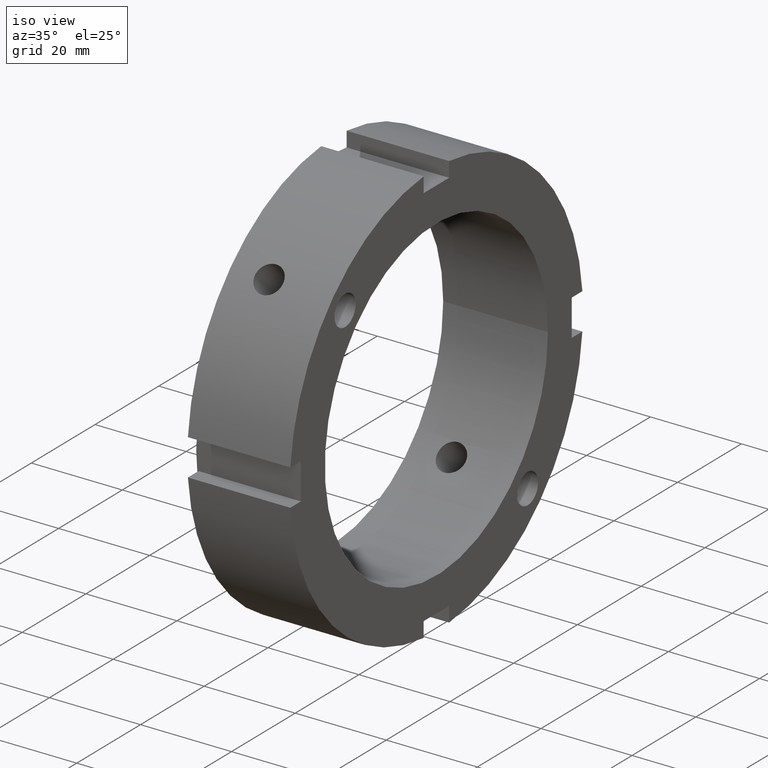
[diagram: clean part render]
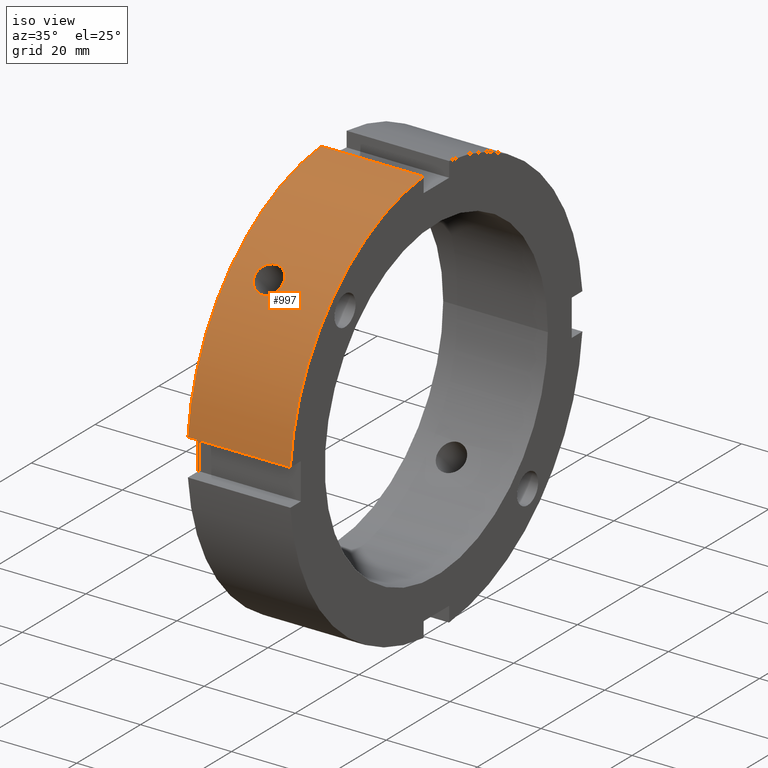
[diagram: same view with one face highlighted and labeled with its STEP entity id]
A machine part, iso view. The second image highlights one B-rep face of the part: STEP entity #997.
In plain terms, the highlighted cylindrical surface (partial cylindrical patch) has radius 46 mm, axis along (1, 0, 0).
Its self-contained STEP definition (entity closure, byte-faithful):
#209=CARTESIAN_POINT('',(8.999999999999988,-34.6449969878269,30.260934944470321));
#210=VERTEX_POINT('',#209);
#211=CARTESIAN_POINT('',(8.999999999999988,-34.644996987826907,30.260934944470321));
#212=CARTESIAN_POINT('',(8.610630340540521,-34.644996987826907,30.260934944470321));
#213=CARTESIAN_POINT('',(8.195388050896174,-34.593820332374165,30.319840368114477));
#214=CARTESIAN_POINT('',(7.431647085058673,-34.384046149106645,30.557527640555264));
#215=CARTESIAN_POINT('',(7.083138380642509,-34.225251580172369,30.736103279460181));
#216=CARTESIAN_POINT('',(6.532799768199826,-33.85466852457693,31.143816553478779));
#217=CARTESIAN_POINT('',(6.294242858999243,-33.618116322715515,31.400130209370243));
#218=CARTESIAN_POINT('',(5.9778397120448,-33.092003818517476,31.954110933131489));
#219=CARTESIAN_POINT('',(5.899999999999988,-32.802237668864997,32.251586200297389));
#220=CARTESIAN_POINT('',(5.899999999999988,-32.251586200297382,32.802237668864997));
#221=CARTESIAN_POINT('',(5.977839712044797,-31.954110933131481,33.092003818517483));
#222=CARTESIAN_POINT('',(6.294242858999236,-31.400130209370239,33.618116322715522));
#223=CARTESIAN_POINT('',(6.532799768199824,-31.143816553478779,33.854668524576937));
#224=CARTESIAN_POINT('',(7.083138380642509,-30.736103279460178,34.225251580172369));
#225=CARTESIAN_POINT('',(7.431647085058669,-30.557527640555268,34.384046149106652));
#226=CARTESIAN_POINT('',(8.19538805089617,-30.319840368114473,34.593820332374172));
#227=CARTESIAN_POINT('',(8.610630340540521,-30.260934944470314,34.644996987826914));
#228=CARTESIAN_POINT('',(9.389369659459456,-30.260934944470314,34.644996987826914));
#229=CARTESIAN_POINT('',(9.804611949103807,-30.319840368114473,34.593820332374172));
#230=CARTESIAN_POINT('',(10.568352914941306,-30.557527640555268,34.384046149106652));
#231=CARTESIAN_POINT('',(10.916861619357467,-30.736103279460178,34.225251580172369));
#232=CARTESIAN_POINT('',(11.467200231800149,-31.143816553478775,33.85466852457693));
#233=CARTESIAN_POINT('',(11.705757141000744,-31.400130209370253,33.618116322715522));
#234=CARTESIAN_POINT('',(12.022160287955181,-31.954110933131492,33.092003818517483));
#235=CARTESIAN_POINT('',(12.099999999999991,-32.251586200297382,32.802237668864997));
#236=CARTESIAN_POINT('',(12.099999999999987,-32.802237668864997,32.251586200297389));
#237=CARTESIAN_POINT('',(12.022160287955177,-33.092003818517483,31.954110933131489));
#238=CARTESIAN_POINT('',(11.705757141000735,-33.618116322715522,31.400130209370243));
#239=CARTESIAN_POINT('',(11.467200231800147,-33.85466852457693,31.143816553478779));
#240=CARTESIAN_POINT('',(10.916861619357466,-34.225251580172369,30.736103279460181));
#241=CARTESIAN_POINT('',(10.568352914941304,-34.384046149106638,30.557527640555271));
#242=CARTESIAN_POINT('',(9.804611949103805,-34.593820332374165,30.31984036811448));
#243=CARTESIAN_POINT('',(9.389369659459456,-34.644996987826907,30.260934944470318));
#244=CARTESIAN_POINT('',(8.999999999999988,-34.644996987826907,30.260934944470318));
#245=B_SPLINE_CURVE_WITH_KNOTS('',3,(#211,#212,#213,#214,#215,#216,#217,#218,#219,#220,#221,#222,#223,#224,#225,#226,#227,#228,#229,#230,#231,#232,#233,#234,#235,#236,#237,#238,#239,#240,#241,#242,#243,#244),.UNSPECIFIED.,.T.,.U.,(4,2,2,2,2,2,2,2,2,2,2,2,2,2,2,2,4),(0.0,0.11681089783784,0.233621795675681,0.350432611924027,0.467243428172373,0.58405424442072,0.700865060669066,0.817675958506906,0.934486856344747,1.051297754182587,1.168108652020428,1.284919468268774,1.401730284517121,1.518541100765467,1.635351917013813,1.752162814851654,1.868973712689494),.UNSPECIFIED.);
#246=EDGE_CURVE('',#210,#210,#245,.T.);
#645=CARTESIAN_POINT('',(0.499999999999989,-45.825756949558411,4.000000000000004));
#646=VERTEX_POINT('',#645);
#661=CARTESIAN_POINT('',(22.999999999999989,-45.825756949558411,4.000000000000004));
#662=VERTEX_POINT('',#661);
#669=CARTESIAN_POINT('',(0.499999999999989,-45.825756949558411,4.000000000000004));
#670=DIRECTION('',(1.0,0.0,0.0));
#671=VECTOR('',#670,22.5);
#672=LINE('',#669,#671);
#673=EDGE_CURVE('',#646,#662,#672,.T.);
#793=CARTESIAN_POINT('',(0.499999999999989,-3.999999999999995,45.825756949558411));
#794=VERTEX_POINT('',#793);
#803=CARTESIAN_POINT('',(22.999999999999989,-3.999999999999995,45.825756949558411));
#804=VERTEX_POINT('',#803);
#805=CARTESIAN_POINT('',(22.999999999999989,-3.999999999999996,45.825756949558411));
#806=DIRECTION('',(-1.0,0.0,0.0));
#807=VECTOR('',#806,22.5);
#808=LINE('',#805,#807);
#809=EDGE_CURVE('',#804,#794,#808,.T.);
#907=CARTESIAN_POINT('',(0.499999999999989,0.0,0.0));
#908=DIRECTION('',(1.0,0.0,0.0));
#909=DIRECTION('',(0.0,1.0,0.0));
#910=AXIS2_PLACEMENT_3D('',#907,#908,#909);
#911=CIRCLE('',#910,46.000000000000007);
#912=EDGE_CURVE('',#794,#646,#911,.T.);
#977=CARTESIAN_POINT('',(11.749999999999989,0.0,0.0));
#978=DIRECTION('',(1.0,0.0,0.0));
#979=DIRECTION('',(0.0,1.0,0.0));
#980=AXIS2_PLACEMENT_3D('',#977,#978,#979);
#981=CYLINDRICAL_SURFACE('',#980,46.000000000000007);
#982=ORIENTED_EDGE('',*,*,#673,.T.);
#983=CARTESIAN_POINT('',(22.999999999999989,0.0,0.0));
#984=DIRECTION('',(1.0,0.0,0.0));
#985=DIRECTION('',(0.0,1.0,0.0));
#986=AXIS2_PLACEMENT_3D('',#983,#984,#985);
#987=CIRCLE('',#986,46.000000000000007);
#988=EDGE_CURVE('',#804,#662,#987,.T.);
#989=ORIENTED_EDGE('',*,*,#988,.F.);
#990=ORIENTED_EDGE('',*,*,#809,.T.);
#991=ORIENTED_EDGE('',*,*,#912,.T.);
#992=EDGE_LOOP('',(#982,#989,#990,#991));
#993=FACE_OUTER_BOUND('',#992,.T.);
#994=ORIENTED_EDGE('',*,*,#246,.T.);
#995=EDGE_LOOP('',(#994));
#996=FACE_BOUND('',#995,.T.);
#997=ADVANCED_FACE('',(#993,#996),#981,.T.);